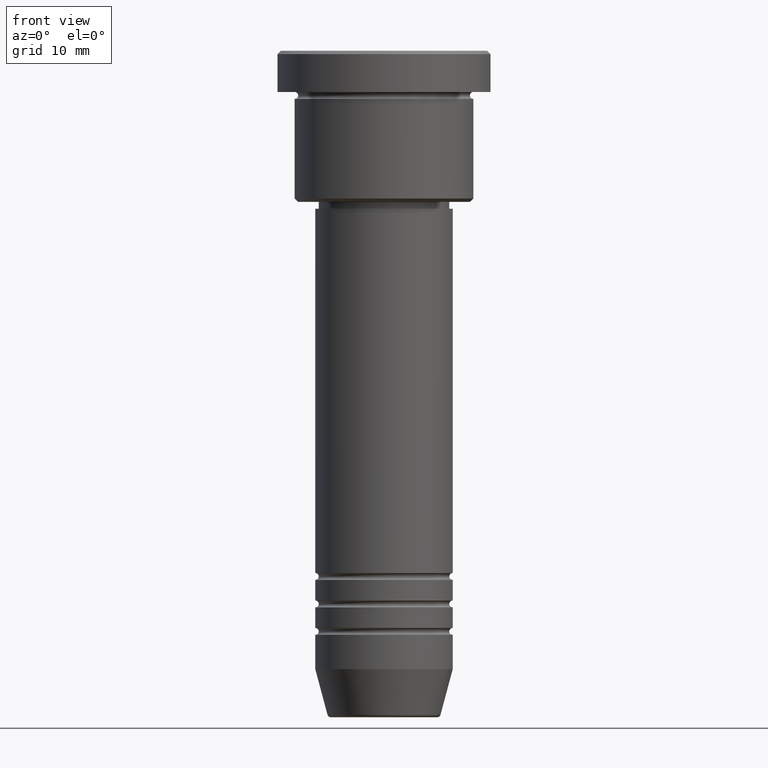
[diagram: clean part render]
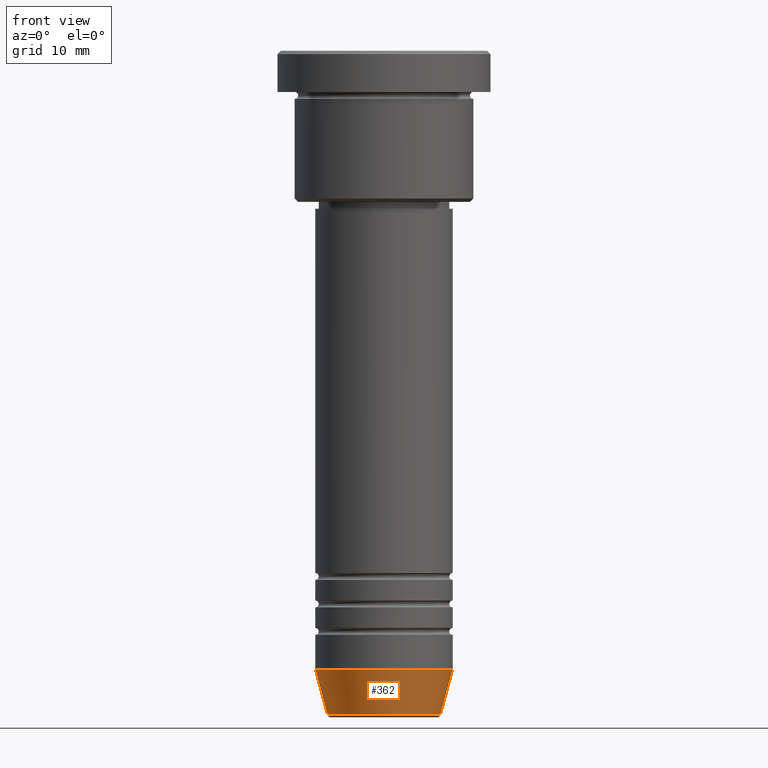
[diagram: same view with one face highlighted and labeled with its STEP entity id]
A machine part, front view. The second image highlights one B-rep face of the part: STEP entity #362.
In plain terms, the highlighted conical surface has half-angle 15 deg.
Its self-contained STEP definition (entity closure, byte-faithful):
#46 = CARTESIAN_POINT ( 'NONE',  ( 8.223655072137189492, 0.000000000000000000, -96.62940952255127058 ) ) ;
#64 = DIRECTION ( 'NONE',  ( -0.000000000000000000, -0.000000000000000000, 1.000000000000000000 ) ) ;
#98 = CARTESIAN_POINT ( 'NONE',  ( 0.000000000000000000, 0.000000000000000000, -90.00000000000000000 ) ) ;
#136 = CIRCLE ( 'NONE', #803, 10.00000000000000000 ) ;
#146 = LINE ( 'NONE', #432, #349 ) ;
#163 = DIRECTION ( 'NONE',  ( 0.2588190451025210725, 0.000000000000000000, 0.9659258262890680902 ) ) ;
#176 = CIRCLE ( 'NONE', #461, 8.223655072137189492 ) ;
#181 = CARTESIAN_POINT ( 'NONE',  ( 10.00000000000000000, 0.000000000000000000, -90.00000000000000000 ) ) ;
#186 = DIRECTION ( 'NONE',  ( -0.000000000000000000, -0.000000000000000000, 1.000000000000000000 ) ) ;
#214 = AXIS2_PLACEMENT_3D ( 'NONE', #98, #749, #464 ) ;
#216 = CARTESIAN_POINT ( 'NONE',  ( 10.00000000000000000, 0.000000000000000000, -90.00000000000000000 ) ) ;
#230 = ORIENTED_EDGE ( 'NONE', *, *, #256, .F. ) ;
#256 = EDGE_CURVE ( 'NONE', #572, #888, #136, .T. ) ;
#261 = CARTESIAN_POINT ( 'NONE',  ( -8.223655072137189492, 1.115877042642912054E-15, -96.62940952255127058 ) ) ;
#332 = ORIENTED_EDGE ( 'NONE', *, *, #624, .T. ) ;
#349 = VECTOR ( 'NONE', #1060, 1000.000000000000114 ) ;
#362 = ADVANCED_FACE ( 'NONE', ( #651 ), #531, .T. ) ;
#432 = CARTESIAN_POINT ( 'NONE',  ( -10.00000000000000000, 1.224646799147353256E-15, -90.00000000000000000 ) ) ;
#461 = AXIS2_PLACEMENT_3D ( 'NONE', #813, #186, #1174 ) ;
#464 = DIRECTION ( 'NONE',  ( 1.000000000000000000, 0.000000000000000000, 0.000000000000000000 ) ) ;
#465 = EDGE_CURVE ( 'NONE', #646, #572, #146, .T. ) ;
#507 = CARTESIAN_POINT ( 'NONE',  ( -10.00000000000000000, 1.224646799147353256E-15, -90.00000000000000000 ) ) ;
#531 = CONICAL_SURFACE ( 'NONE', #214, 10.00000000000000000, 0.2617993877991497964 ) ;
#572 = VERTEX_POINT ( 'NONE', #507 ) ;
#624 = EDGE_CURVE ( 'NONE', #1119, #888, #1079, .T. ) ;
#625 = CARTESIAN_POINT ( 'NONE',  ( 0.000000000000000000, 0.000000000000000000, -90.00000000000000000 ) ) ;
#646 = VERTEX_POINT ( 'NONE', #261 ) ;
#651 = FACE_OUTER_BOUND ( 'NONE', #870, .T. ) ;
#669 = EDGE_CURVE ( 'NONE', #646, #1119, #176, .T. ) ;
#672 = VECTOR ( 'NONE', #163, 1000.000000000000114 ) ;
#705 = ORIENTED_EDGE ( 'NONE', *, *, #669, .T. ) ;
#749 = DIRECTION ( 'NONE',  ( -0.000000000000000000, -0.000000000000000000, 1.000000000000000000 ) ) ;
#803 = AXIS2_PLACEMENT_3D ( 'NONE', #625, #64, #993 ) ;
#813 = CARTESIAN_POINT ( 'NONE',  ( 0.000000000000000000, 0.000000000000000000, -96.62940952255127058 ) ) ;
#870 = EDGE_LOOP ( 'NONE', ( #1110, #705, #332, #230 ) ) ;
#888 = VERTEX_POINT ( 'NONE', #216 ) ;
#993 = DIRECTION ( 'NONE',  ( 1.000000000000000000, 0.000000000000000000, 0.000000000000000000 ) ) ;
#1060 = DIRECTION ( 'NONE',  ( -0.2588190451025210725, 3.169619151431769255E-17, 0.9659258262890680902 ) ) ;
#1079 = LINE ( 'NONE', #181, #672 ) ;
#1110 = ORIENTED_EDGE ( 'NONE', *, *, #465, .F. ) ;
#1119 = VERTEX_POINT ( 'NONE', #46 ) ;
#1174 = DIRECTION ( 'NONE',  ( 1.000000000000000000, 0.000000000000000000, 0.000000000000000000 ) ) ;